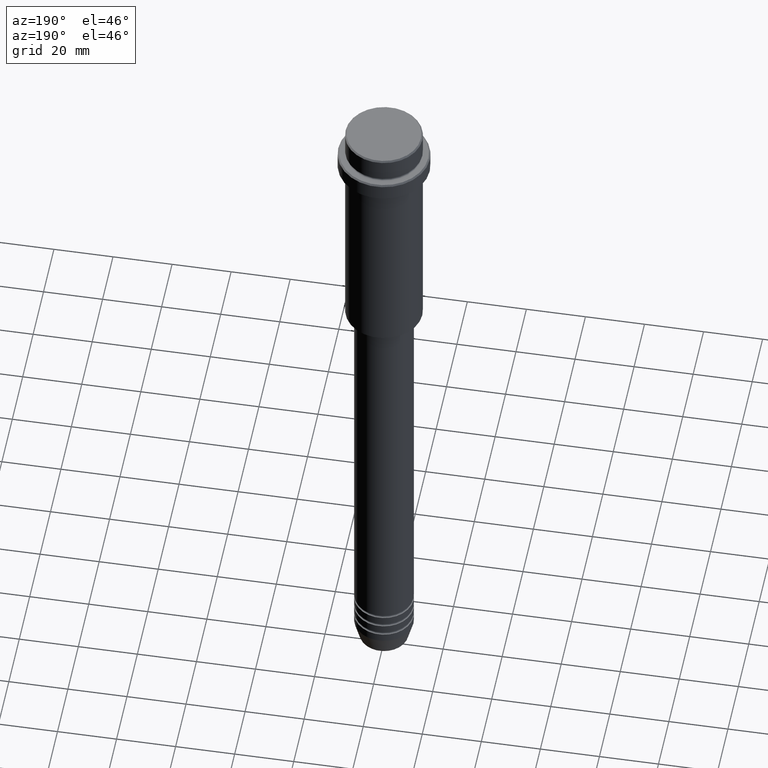
[diagram: clean part render]
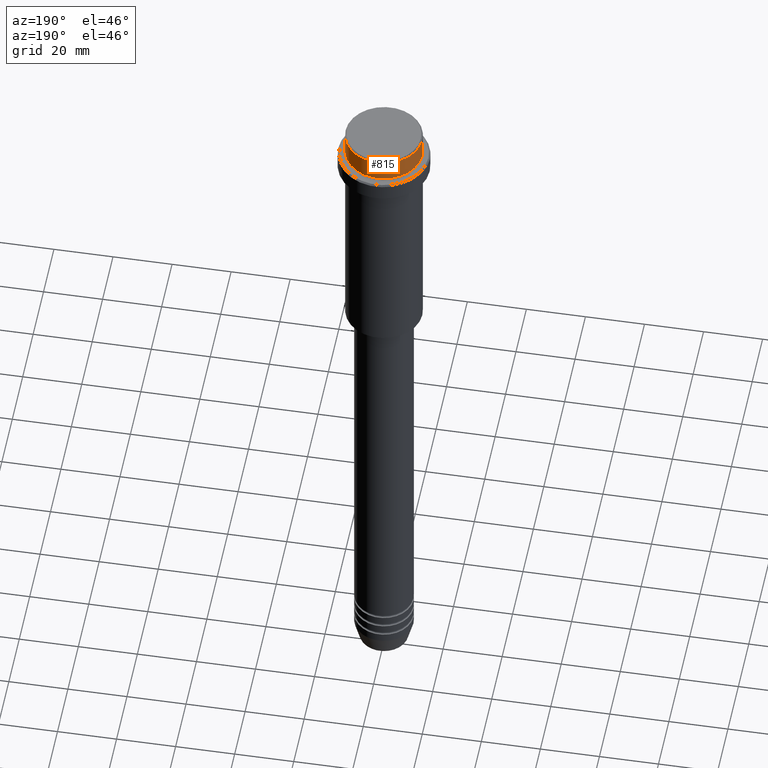
[diagram: same view with one face highlighted and labeled with its STEP entity id]
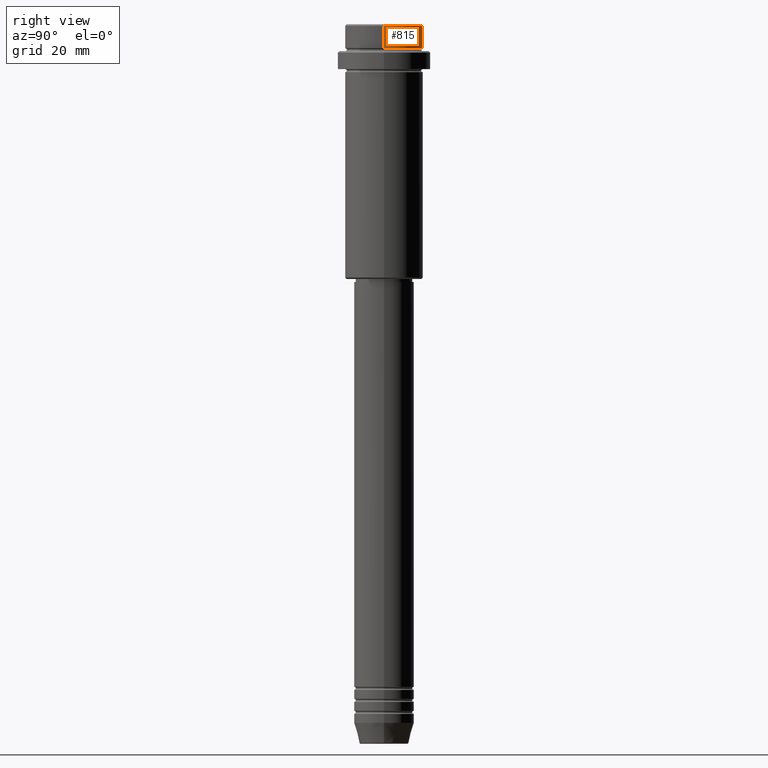
[diagram: same view with one face highlighted and labeled with its STEP entity id]
A machine part, auxiliary view. The second image highlights one B-rep face of the part: STEP entity #815.
A second angle (right view) of the same face is appended — the face is thin or edge-on in the first view.
In plain terms, the highlighted cylindrical surface (partial cylindrical patch) has radius 13 mm, axis along (-0, -0, 1).
Its self-contained STEP definition (entity closure, byte-faithful):
#11 = VERTEX_POINT ( 'NONE', #1137 ) ;
#39 = VERTEX_POINT ( 'NONE', #380 ) ;
#69 = VECTOR ( 'NONE', #826, 1000.000000000000000 ) ;
#93 = DIRECTION ( 'NONE',  ( 1.000000000000000000, 0.000000000000000000, 0.000000000000000000 ) ) ;
#100 = ORIENTED_EDGE ( 'NONE', *, *, #1133, .T. ) ;
#129 = ORIENTED_EDGE ( 'NONE', *, *, #914, .T. ) ;
#154 = LINE ( 'NONE', #886, #1125 ) ;
#255 = VERTEX_POINT ( 'NONE', #909 ) ;
#259 = EDGE_CURVE ( 'NONE', #39, #364, #154, .T. ) ;
#338 = DIRECTION ( 'NONE',  ( -0.000000000000000000, -0.000000000000000000, 1.000000000000000000 ) ) ;
#349 = CIRCLE ( 'NONE', #1348, 12.99999999999999822 ) ;
#356 = DIRECTION ( 'NONE',  ( -0.000000000000000000, -0.000000000000000000, 1.000000000000000000 ) ) ;
#364 = VERTEX_POINT ( 'NONE', #1299 ) ;
#369 = AXIS2_PLACEMENT_3D ( 'NONE', #816, #356, #1257 ) ;
#380 = CARTESIAN_POINT ( 'NONE',  ( 12.99999999999999822, 0.000000000000000000, -7.999999999999998224 ) ) ;
#436 = EDGE_CURVE ( 'NONE', #39, #255, #349, .T. ) ;
#508 = ORIENTED_EDGE ( 'NONE', *, *, #259, .F. ) ;
#529 = CARTESIAN_POINT ( 'NONE',  ( 0.000000000000000000, 0.000000000000000000, -0.5000000000000038858 ) ) ;
#589 = EDGE_LOOP ( 'NONE', ( #837, #129, #100, #508 ) ) ;
#815 = ADVANCED_FACE ( 'NONE', ( #1029 ), #1363, .T. ) ;
#816 = CARTESIAN_POINT ( 'NONE',  ( 0.000000000000000000, 0.000000000000000000, 0.000000000000000000 ) ) ;
#826 = DIRECTION ( 'NONE',  ( -0.000000000000000000, -0.000000000000000000, 1.000000000000000000 ) ) ;
#837 = ORIENTED_EDGE ( 'NONE', *, *, #436, .T. ) ;
#852 = DIRECTION ( 'NONE',  ( 1.000000000000000000, 0.000000000000000000, 0.000000000000000000 ) ) ;
#886 = CARTESIAN_POINT ( 'NONE',  ( 12.99999999999999822, 0.000000000000000000, 0.000000000000000000 ) ) ;
#909 = CARTESIAN_POINT ( 'NONE',  ( -12.99999999999999822, 1.592040838891558898E-15, -7.999999999999998224 ) ) ;
#914 = EDGE_CURVE ( 'NONE', #255, #11, #1273, .T. ) ;
#928 = CARTESIAN_POINT ( 'NONE',  ( -12.99999999999999822, 1.592040838891558898E-15, 0.000000000000000000 ) ) ;
#969 = DIRECTION ( 'NONE',  ( 0.000000000000000000, 0.000000000000000000, -1.000000000000000000 ) ) ;
#1029 = FACE_OUTER_BOUND ( 'NONE', #589, .T. ) ;
#1070 = CARTESIAN_POINT ( 'NONE',  ( 0.000000000000000000, 0.000000000000000000, -7.999999999999998224 ) ) ;
#1077 = AXIS2_PLACEMENT_3D ( 'NONE', #529, #969, #852 ) ;
#1125 = VECTOR ( 'NONE', #338, 1000.000000000000000 ) ;
#1133 = EDGE_CURVE ( 'NONE', #11, #364, #1222, .T. ) ;
#1137 = CARTESIAN_POINT ( 'NONE',  ( -12.99999999999999822, 1.592040838891558898E-15, -0.5000000000000038858 ) ) ;
#1190 = DIRECTION ( 'NONE',  ( -0.000000000000000000, -0.000000000000000000, 1.000000000000000000 ) ) ;
#1222 = CIRCLE ( 'NONE', #1077, 12.99999999999999822 ) ;
#1257 = DIRECTION ( 'NONE',  ( 1.000000000000000000, 0.000000000000000000, 0.000000000000000000 ) ) ;
#1273 = LINE ( 'NONE', #928, #69 ) ;
#1299 = CARTESIAN_POINT ( 'NONE',  ( 12.99999999999999822, 0.000000000000000000, -0.5000000000000038858 ) ) ;
#1348 = AXIS2_PLACEMENT_3D ( 'NONE', #1070, #1190, #93 ) ;
#1363 = CYLINDRICAL_SURFACE ( 'NONE', #369, 12.99999999999999822 ) ;